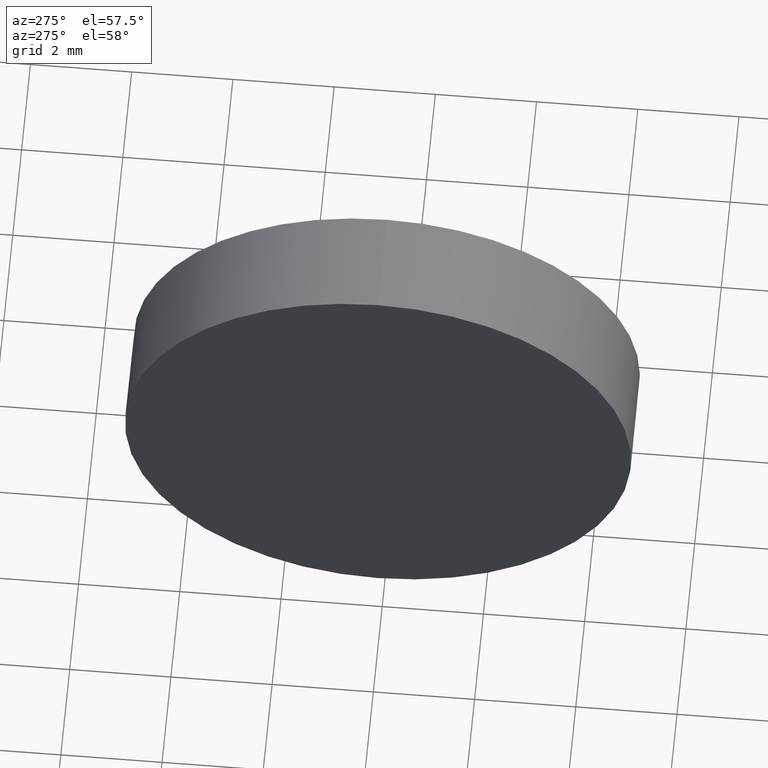
[diagram: clean part render]
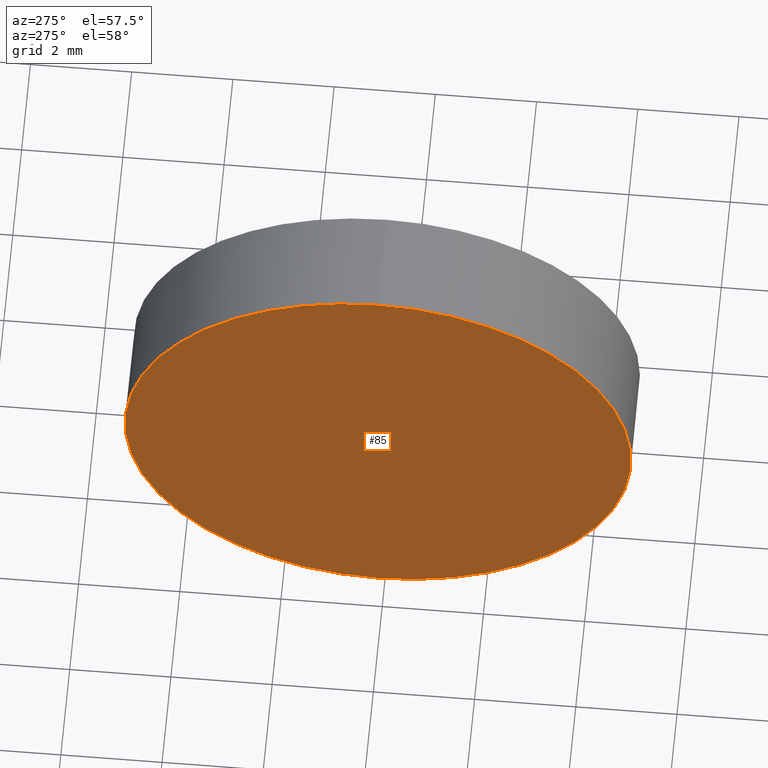
[diagram: same view with one face highlighted and labeled with its STEP entity id]
A machine part, auxiliary view. The second image highlights one B-rep face of the part: STEP entity #85.
In plain terms, the highlighted planar face has unit normal (1, 0, 0).
Its self-contained STEP definition (entity closure, byte-faithful):
#12 = AXIS2_PLACEMENT_3D ( 'NONE', #81, #47, #72 ) ;
#13 = CARTESIAN_POINT ( 'NONE',  ( 432.5168142886836300, 90.12789377755979100, 5.000000000000004400 ) ) ;
#23 = VERTEX_POINT ( 'NONE', #109 ) ;
#26 = AXIS2_PLACEMENT_3D ( 'NONE', #169, #170, #181 ) ;
#33 = PLANE ( 'NONE',  #12 ) ;
#47 = DIRECTION ( 'NONE',  ( 1.000000000000000000, 0.0000000000000000000, 0.0000000000000000000 ) ) ;
#53 = ORIENTED_EDGE ( 'NONE', *, *, #168, .T. ) ;
#65 = CIRCLE ( 'NONE', #163, 5.000000000000004400 ) ;
#72 = DIRECTION ( 'NONE',  ( 0.0000000000000000000, 0.0000000000000000000, -1.000000000000000000 ) ) ;
#75 = CARTESIAN_POINT ( 'NONE',  ( 432.5168142886836300, 90.12789377755979100, 0.0000000000000000000 ) ) ;
#81 = CARTESIAN_POINT ( 'NONE',  ( 432.5168142886836300, 90.12789377755979100, 0.0000000000000000000 ) ) ;
#83 = DIRECTION ( 'NONE',  ( 0.0000000000000000000, 0.0000000000000000000, 1.000000000000000000 ) ) ;
#85 = ADVANCED_FACE ( 'NONE', ( #113 ), #33, .F. ) ;
#109 = CARTESIAN_POINT ( 'NONE',  ( 432.5168142886836300, 90.12789377755979100, -5.000000000000004400 ) ) ;
#113 = FACE_OUTER_BOUND ( 'NONE', #133, .T. ) ;
#132 = EDGE_CURVE ( 'NONE', #23, #174, #65, .T. ) ;
#133 = EDGE_LOOP ( 'NONE', ( #53, #159 ) ) ;
#147 = CIRCLE ( 'NONE', #26, 5.000000000000004400 ) ;
#159 = ORIENTED_EDGE ( 'NONE', *, *, #132, .T. ) ;
#163 = AXIS2_PLACEMENT_3D ( 'NONE', #75, #171, #83 ) ;
#168 = EDGE_CURVE ( 'NONE', #174, #23, #147, .T. ) ;
#169 = CARTESIAN_POINT ( 'NONE',  ( 432.5168142886836300, 90.12789377755979100, 0.0000000000000000000 ) ) ;
#170 = DIRECTION ( 'NONE',  ( -1.000000000000000000, -0.0000000000000000000, -0.0000000000000000000 ) ) ;
#171 = DIRECTION ( 'NONE',  ( -1.000000000000000000, -0.0000000000000000000, -0.0000000000000000000 ) ) ;
#174 = VERTEX_POINT ( 'NONE', #13 ) ;
#181 = DIRECTION ( 'NONE',  ( 0.0000000000000000000, 0.0000000000000000000, 1.000000000000000000 ) ) ;